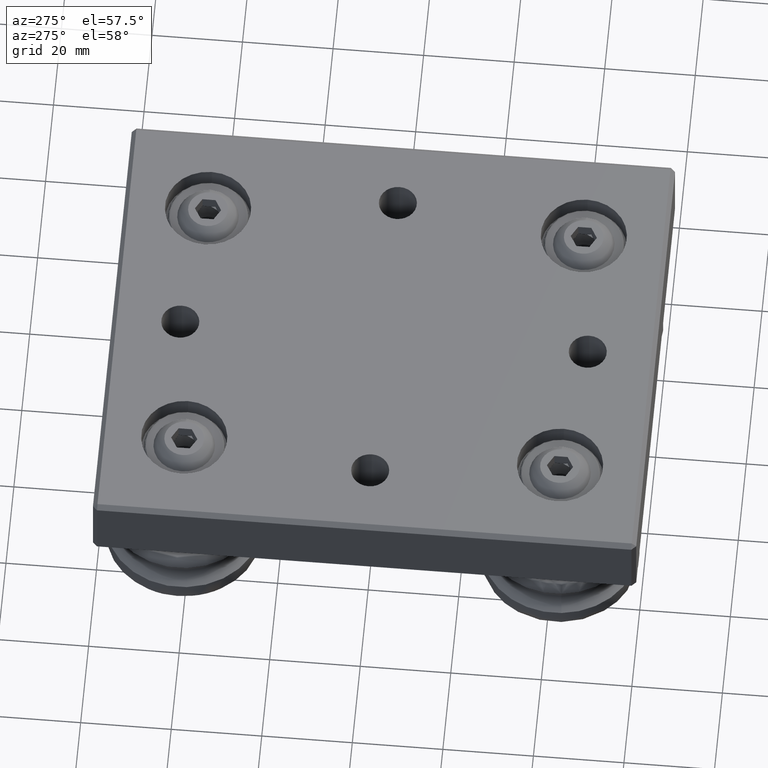
[diagram: clean part render]
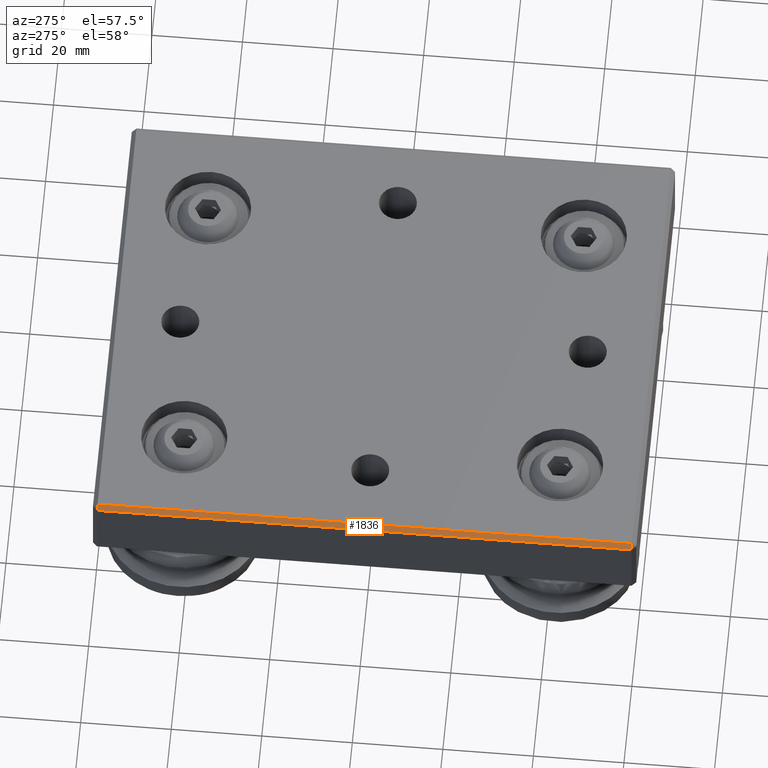
[diagram: same view with one face highlighted and labeled with its STEP entity id]
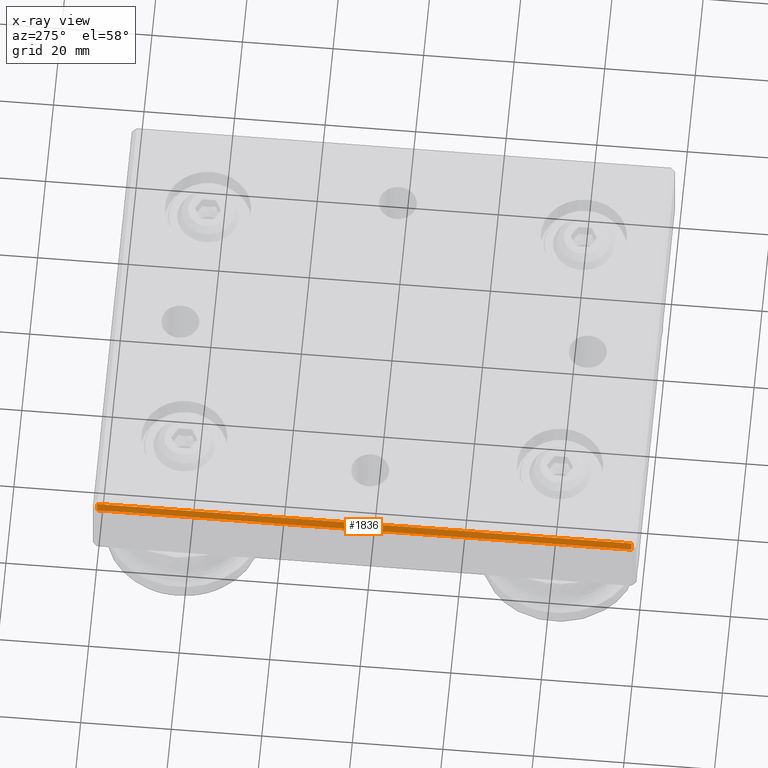
[diagram: x-ray of the same camera — body ghosted, the highlighted face saturated]
A machine part, auxiliary view. The second image highlights one B-rep face of the part: STEP entity #1836.
The next image is the same camera in x-ray: the body ghosted, the highlighted face saturated — about 0% of this face is hidden behind the body in this view.
In plain terms, the highlighted planar face has unit normal (-0.7071, 0, 0.7071).
Its self-contained STEP definition (entity closure, byte-faithful):
#327=FACE_OUTER_BOUND('',#449,.T.);
#449=EDGE_LOOP('',(#1274,#1275,#1276,#1277));
#605=LINE('',#2885,#737);
#610=LINE('',#2898,#742);
#612=LINE('',#2901,#744);
#613=LINE('',#2902,#745);
#737=VECTOR('',#2287,10.);
#742=VECTOR('',#2296,10.);
#744=VECTOR('',#2300,10.);
#745=VECTOR('',#2301,10.);
#868=VERTEX_POINT('',#2881);
#869=VERTEX_POINT('',#2883);
#873=VERTEX_POINT('',#2894);
#875=VERTEX_POINT('',#2897);
#1016=EDGE_CURVE('',#868,#869,#605,.T.);
#1021=EDGE_CURVE('',#875,#873,#610,.T.);
#1023=EDGE_CURVE('',#873,#868,#612,.T.);
#1024=EDGE_CURVE('',#869,#875,#613,.T.);
#1274=ORIENTED_EDGE('',*,*,#1021,.T.);
#1275=ORIENTED_EDGE('',*,*,#1023,.T.);
#1276=ORIENTED_EDGE('',*,*,#1016,.T.);
#1277=ORIENTED_EDGE('',*,*,#1024,.T.);
#1764=PLANE('',#2042);
#1836=ADVANCED_FACE('',(#327),#1764,.T.);
#2042=AXIS2_PLACEMENT_3D('',#2900,#2298,#2299);
#2287=DIRECTION('',(-0.707106781186546,-0.707106781186549,0.));
#2296=DIRECTION('',(0.707106781186546,0.707106781186549,0.));
#2298=DIRECTION('center_axis',(0.707106781186549,-0.707106781186546,0.));
#2299=DIRECTION('ref_axis',(0.,0.,-1.));
#2300=DIRECTION('',(0.,0.,1.));
#2301=DIRECTION('',(0.,0.,-1.));
#2881=CARTESIAN_POINT('',(50.,1.,59.));
#2883=CARTESIAN_POINT('',(49.,0.,59.));
#2885=CARTESIAN_POINT('',(50.,1.,59.));
#2894=CARTESIAN_POINT('',(50.,1.,-59.));
#2897=CARTESIAN_POINT('',(49.,0.,-59.));
#2898=CARTESIAN_POINT('',(49.,0.,-59.));
#2900=CARTESIAN_POINT('Origin',(49.5,0.5,30.));
#2901=CARTESIAN_POINT('',(50.,1.,30.));
#2902=CARTESIAN_POINT('',(49.,0.,30.));